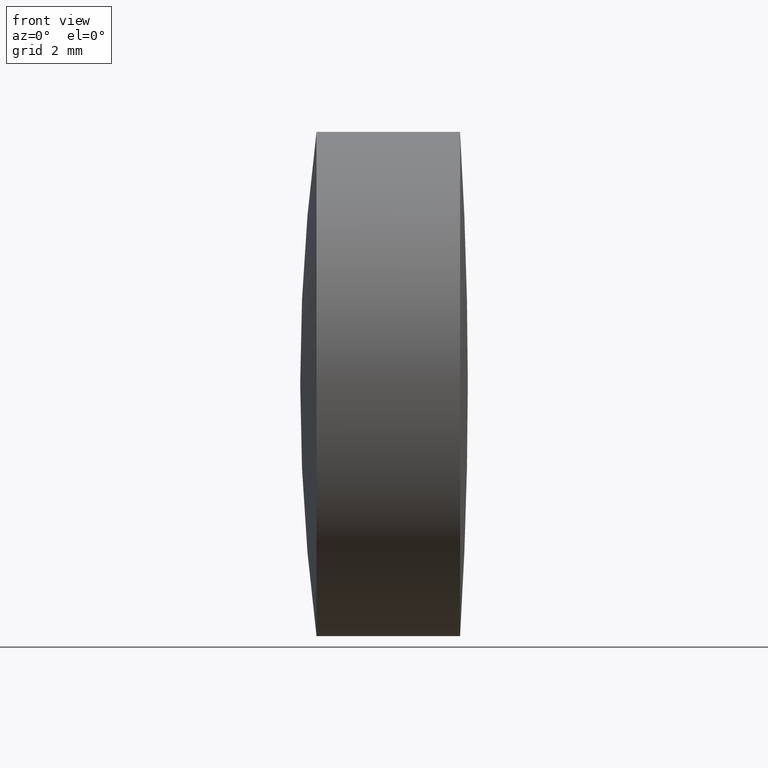
[diagram: clean part render]
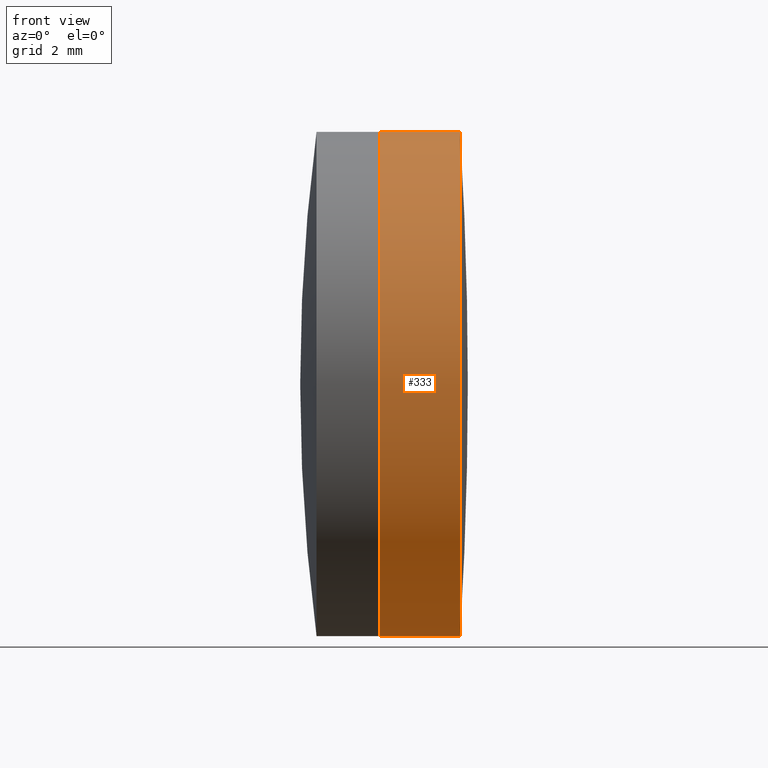
[diagram: same view with one face highlighted and labeled with its STEP entity id]
A machine part, front view. The second image highlights one B-rep face of the part: STEP entity #333.
In plain terms, the highlighted cylindrical surface (partial cylindrical patch) has radius 8 mm, axis along (-1, -0, -0).
Its self-contained STEP definition (entity closure, byte-faithful):
#9 = CARTESIAN_POINT ( 'NONE',  ( 38.17090631032368700, 9.797174393178837500E-016, -8.000000000000007100 ) ) ;
#14 = EDGE_LOOP ( 'NONE', ( #81, #241, #216, #170 ) ) ;
#41 = VERTEX_POINT ( 'NONE', #341 ) ;
#49 = VECTOR ( 'NONE', #137, 1000.000000000000000 ) ;
#52 = DIRECTION ( 'NONE',  ( 0.0000000000000000000, 0.0000000000000000000, 1.000000000000000000 ) ) ;
#64 = VECTOR ( 'NONE', #324, 1000.000000000000000 ) ;
#80 = CARTESIAN_POINT ( 'NONE',  ( -0.5519199926577972300, 0.0000000000000000000, 8.000000000000010700 ) ) ;
#81 = ORIENTED_EDGE ( 'NONE', *, *, #275, .F. ) ;
#85 = DIRECTION ( 'NONE',  ( -1.000000000000000000, -0.0000000000000000000, -0.0000000000000000000 ) ) ;
#86 = VERTEX_POINT ( 'NONE', #174 ) ;
#103 = DIRECTION ( 'NONE',  ( 0.0000000000000000000, 0.0000000000000000000, 1.000000000000000000 ) ) ;
#107 = CARTESIAN_POINT ( 'NONE',  ( 35.61649277584162100, 0.0000000000000000000, 0.0000000000000000000 ) ) ;
#118 = EDGE_CURVE ( 'NONE', #271, #247, #323, .T. ) ;
#125 = LINE ( 'NONE', #176, #49 ) ;
#137 = DIRECTION ( 'NONE',  ( -1.000000000000000000, -0.0000000000000000000, -0.0000000000000000000 ) ) ;
#140 = FACE_OUTER_BOUND ( 'NONE', #14, .T. ) ;
#148 = CYLINDRICAL_SURFACE ( 'NONE', #287, 8.000000000000010700 ) ;
#152 = AXIS2_PLACEMENT_3D ( 'NONE', #155, #299, #318 ) ;
#155 = CARTESIAN_POINT ( 'NONE',  ( 38.17090631032368700, 0.0000000000000000000, 0.0000000000000000000 ) ) ;
#157 = CARTESIAN_POINT ( 'NONE',  ( 38.17090631032368700, 0.0000000000000000000, 8.000000000000007100 ) ) ;
#162 = DIRECTION ( 'NONE',  ( -1.000000000000000000, -0.0000000000000000000, -0.0000000000000000000 ) ) ;
#170 = ORIENTED_EDGE ( 'NONE', *, *, #228, .F. ) ;
#174 = CARTESIAN_POINT ( 'NONE',  ( 35.61649277584162100, 0.0000000000000000000, 8.000000000000014200 ) ) ;
#176 = CARTESIAN_POINT ( 'NONE',  ( -0.5519199926577972300, 9.797174393178839500E-016, -8.000000000000010700 ) ) ;
#196 = EDGE_CURVE ( 'NONE', #247, #86, #212, .T. ) ;
#202 = AXIS2_PLACEMENT_3D ( 'NONE', #107, #85, #52 ) ;
#205 = CARTESIAN_POINT ( 'NONE',  ( -0.5519199926577972300, 0.0000000000000000000, 0.0000000000000000000 ) ) ;
#212 = LINE ( 'NONE', #80, #64 ) ;
#216 = ORIENTED_EDGE ( 'NONE', *, *, #196, .T. ) ;
#228 = EDGE_CURVE ( 'NONE', #41, #86, #330, .T. ) ;
#241 = ORIENTED_EDGE ( 'NONE', *, *, #118, .T. ) ;
#247 = VERTEX_POINT ( 'NONE', #157 ) ;
#271 = VERTEX_POINT ( 'NONE', #9 ) ;
#275 = EDGE_CURVE ( 'NONE', #271, #41, #125, .T. ) ;
#287 = AXIS2_PLACEMENT_3D ( 'NONE', #205, #162, #103 ) ;
#299 = DIRECTION ( 'NONE',  ( -1.000000000000000000, -0.0000000000000000000, -0.0000000000000000000 ) ) ;
#318 = DIRECTION ( 'NONE',  ( 0.0000000000000000000, 0.0000000000000000000, 1.000000000000000000 ) ) ;
#323 = CIRCLE ( 'NONE', #152, 8.000000000000007100 ) ;
#324 = DIRECTION ( 'NONE',  ( -1.000000000000000000, -0.0000000000000000000, -0.0000000000000000000 ) ) ;
#330 = CIRCLE ( 'NONE', #202, 8.000000000000012400 ) ;
#333 = ADVANCED_FACE ( 'NONE', ( #140 ), #148, .T. ) ;
#341 = CARTESIAN_POINT ( 'NONE',  ( 35.61649277584162100, 9.797174393178843400E-016, -8.000000000000014200 ) ) ;